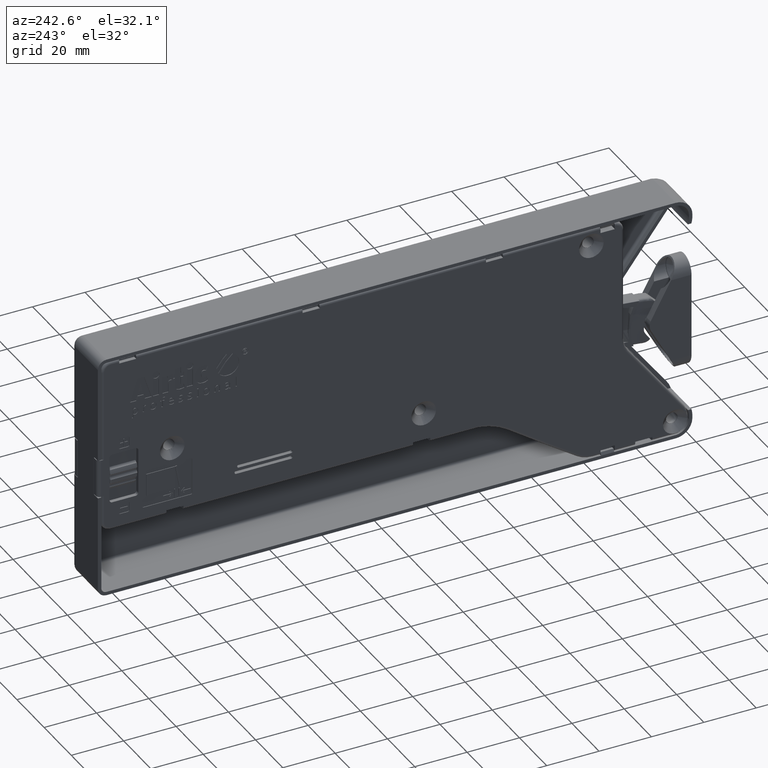
[diagram: clean part render]
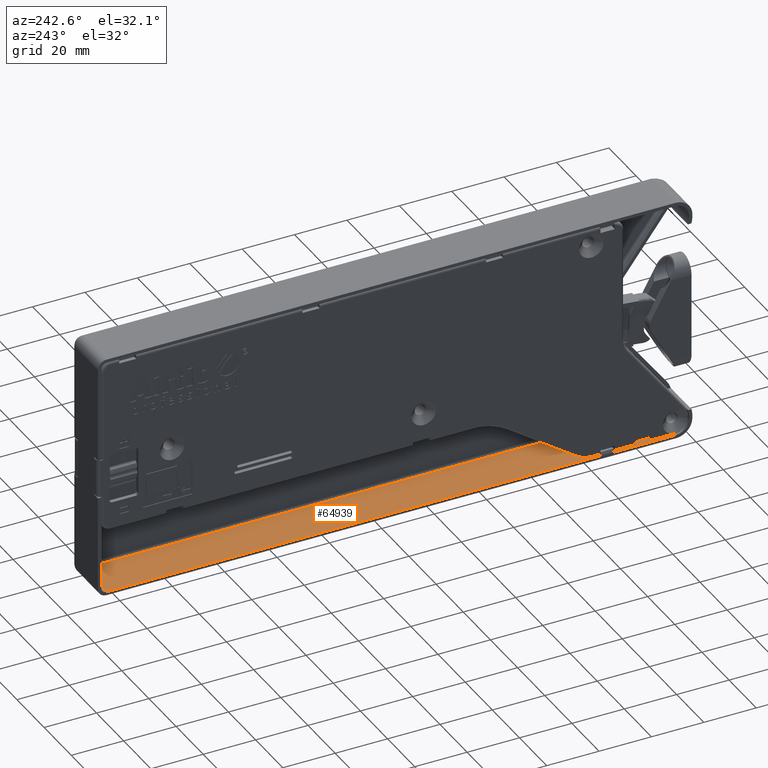
[diagram: same view with one face highlighted and labeled with its STEP entity id]
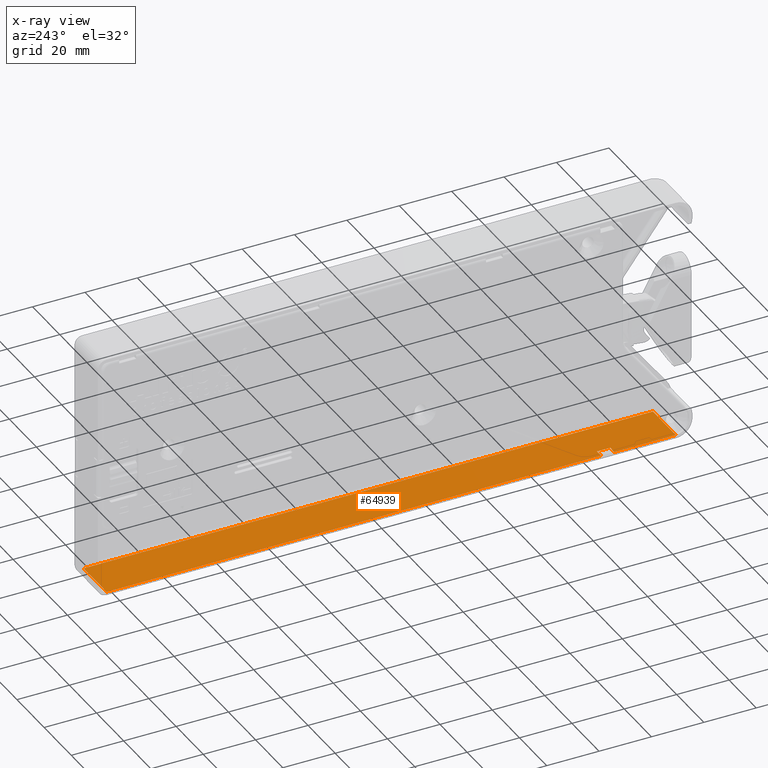
[diagram: x-ray of the same camera — body ghosted, the highlighted face saturated]
A machine part, auxiliary view. The second image highlights one B-rep face of the part: STEP entity #64939.
The next image is the same camera in x-ray: the body ghosted, the highlighted face saturated — about 0% of this face is hidden behind the body in this view.
In plain terms, the highlighted planar face has unit normal (-0, 0, 1).
Its self-contained STEP definition (entity closure, byte-faithful):
#298 = LINE ( 'NONE', #11171, #15375 ) ;
#433 = VECTOR ( 'NONE', #31819, 1000.000000000000000 ) ;
#1059 = DIRECTION ( 'NONE',  ( 1.000000000000000000, 1.604498962449592200E-017, 0.0000000000000000000 ) ) ;
#2940 = CARTESIAN_POINT ( 'NONE',  ( 120.0864778059239800, -10.67789999999391700, 2.913311759058891100 ) ) ;
#5059 = VERTEX_POINT ( 'NONE', #62179 ) ;
#7468 = ORIENTED_EDGE ( 'NONE', *, *, #64858, .F. ) ;
#7702 = LINE ( 'NONE', #48712, #66263 ) ;
#8543 = DIRECTION ( 'NONE',  ( -1.000000000000000000, -1.604498962449592200E-017, 0.0000000000000000000 ) ) ;
#8548 = ORIENTED_EDGE ( 'NONE', *, *, #69683, .T. ) ;
#8993 = EDGE_CURVE ( 'NONE', #57136, #43793, #298, .T. ) ;
#10333 = ORIENTED_EDGE ( 'NONE', *, *, #8993, .F. ) ;
#11171 = CARTESIAN_POINT ( 'NONE',  ( 120.0824778059239700, -10.67789999999391700, -13.97668824094110500 ) ) ;
#11289 = VECTOR ( 'NONE', #29445, 1000.000000000000000 ) ;
#11579 = ORIENTED_EDGE ( 'NONE', *, *, #64984, .F. ) ;
#12430 = ORIENTED_EDGE ( 'NONE', *, *, #37243, .F. ) ;
#12523 = AXIS2_PLACEMENT_3D ( 'NONE', #53702, #24011, #8543 ) ;
#15375 = VECTOR ( 'NONE', #16913, 1000.000000000000000 ) ;
#16678 = VECTOR ( 'NONE', #64433, 1000.000000000000000 ) ;
#16913 = DIRECTION ( 'NONE',  ( 1.000000000000000000, 1.604498962449592200E-017, 0.0000000000000000000 ) ) ;
#17032 = VECTOR ( 'NONE', #62939, 1000.000000000000000 ) ;
#17442 = CARTESIAN_POINT ( 'NONE',  ( -73.70802688559520300, -10.67789999999392100, -10.97668824094110800 ) ) ;
#17827 = CARTESIAN_POINT ( 'NONE',  ( -97.23110533220942400, -10.67789999999392100, 2.913311759058891100 ) ) ;
#18405 = CARTESIAN_POINT ( 'NONE',  ( 120.0864778059239800, -10.67789999999391700, -13.97668824094110500 ) ) ;
#20440 = CARTESIAN_POINT ( 'NONE',  ( 120.0864778059239800, -10.67789999999391700, -14.17668824094110400 ) ) ;
#22741 = ORIENTED_EDGE ( 'NONE', *, *, #53689, .T. ) ;
#24011 = DIRECTION ( 'NONE',  ( -1.604498962449592200E-017, 1.000000000000000000, 0.0000000000000000000 ) ) ;
#26191 = EDGE_CURVE ( 'NONE', #5059, #71299, #46809, .T. ) ;
#26338 = LINE ( 'NONE', #63417, #11289 ) ;
#27668 = DIRECTION ( 'NONE',  ( 1.000000000000000000, 1.604498962449592200E-017, 0.0000000000000000000 ) ) ;
#27859 = LINE ( 'NONE', #51858, #71343 ) ;
#28782 = CARTESIAN_POINT ( 'NONE',  ( -97.23110533220942400, -10.67789999999392100, -13.97668824094110500 ) ) ;
#29445 = DIRECTION ( 'NONE',  ( -0.0000000000000000000, -0.0000000000000000000, -1.000000000000000000 ) ) ;
#30582 = LINE ( 'NONE', #20440, #433 ) ;
#31358 = ORIENTED_EDGE ( 'NONE', *, *, #57649, .T. ) ;
#31819 = DIRECTION ( 'NONE',  ( 0.0000000000000000000, 0.0000000000000000000, -1.000000000000000000 ) ) ;
#34510 = VERTEX_POINT ( 'NONE', #28782 ) ;
#35035 = ORIENTED_EDGE ( 'NONE', *, *, #26191, .T. ) ;
#37243 = EDGE_CURVE ( 'NONE', #34510, #41589, #67555, .T. ) ;
#38306 = VERTEX_POINT ( 'NONE', #2940 ) ;
#41589 = VERTEX_POINT ( 'NONE', #65644 ) ;
#43039 = DIRECTION ( 'NONE',  ( 0.0000000000000000000, 0.0000000000000000000, -1.000000000000000000 ) ) ;
#43793 = VERTEX_POINT ( 'NONE', #18405 ) ;
#44539 = CARTESIAN_POINT ( 'NONE',  ( 120.0824778059239700, -10.67789999999391700, -13.97668824094110500 ) ) ;
#46809 = LINE ( 'NONE', #58749, #16678 ) ;
#48474 = CARTESIAN_POINT ( 'NONE',  ( -68.70802688559520300, -10.67789999999392100, -13.97668824094110500 ) ) ;
#48712 = CARTESIAN_POINT ( 'NONE',  ( -68.70802688559520300, -10.67789999999392100, -10.97668824094110800 ) ) ;
#50929 = VERTEX_POINT ( 'NONE', #17827 ) ;
#51858 = CARTESIAN_POINT ( 'NONE',  ( 120.0824778059239700, -10.67789999999391700, 2.913311759058891100 ) ) ;
#52480 = VECTOR ( 'NONE', #27668, 1000.000000000000000 ) ;
#52974 = FACE_OUTER_BOUND ( 'NONE', #55895, .T. ) ;
#53689 = EDGE_CURVE ( 'NONE', #50929, #38306, #27859, .T. ) ;
#53702 = CARTESIAN_POINT ( 'NONE',  ( 120.0824778059239700, -10.67789999999391700, 3.913311759058890600 ) ) ;
#55895 = EDGE_LOOP ( 'NONE', ( #11579, #35035, #8548, #12430, #7468, #22741, #31358, #10333 ) ) ;
#57136 = VERTEX_POINT ( 'NONE', #48474 ) ;
#57649 = EDGE_CURVE ( 'NONE', #38306, #43793, #30582, .T. ) ;
#58749 = CARTESIAN_POINT ( 'NONE',  ( -68.70802688559520300, -10.67789999999392100, -10.97668824094110800 ) ) ;
#62179 = CARTESIAN_POINT ( 'NONE',  ( -68.70802688559520300, -10.67789999999392100, -10.97668824094110800 ) ) ;
#62239 = LINE ( 'NONE', #68630, #17032 ) ;
#62939 = DIRECTION ( 'NONE',  ( 0.0000000000000000000, 0.0000000000000000000, -1.000000000000000000 ) ) ;
#63417 = CARTESIAN_POINT ( 'NONE',  ( -97.23110533220942400, -10.67789999999392100, 3.913311759058890600 ) ) ;
#64433 = DIRECTION ( 'NONE',  ( -1.000000000000000000, -0.0000000000000000000, -0.0000000000000000000 ) ) ;
#64858 = EDGE_CURVE ( 'NONE', #50929, #34510, #26338, .T. ) ;
#64939 = ADVANCED_FACE ( 'NONE', ( #52974 ), #70818, .T. ) ;
#64984 = EDGE_CURVE ( 'NONE', #5059, #57136, #7702, .T. ) ;
#65644 = CARTESIAN_POINT ( 'NONE',  ( -73.70802688559517400, -10.67789999999392100, -13.97668824094110500 ) ) ;
#66263 = VECTOR ( 'NONE', #43039, 1000.000000000000000 ) ;
#67555 = LINE ( 'NONE', #44539, #52480 ) ;
#68630 = CARTESIAN_POINT ( 'NONE',  ( -73.70802688559520300, -10.67789999999392100, -10.97668824094110800 ) ) ;
#69683 = EDGE_CURVE ( 'NONE', #71299, #41589, #62239, .T. ) ;
#70818 = PLANE ( 'NONE',  #12523 ) ;
#71299 = VERTEX_POINT ( 'NONE', #17442 ) ;
#71343 = VECTOR ( 'NONE', #1059, 1000.000000000000000 ) ;